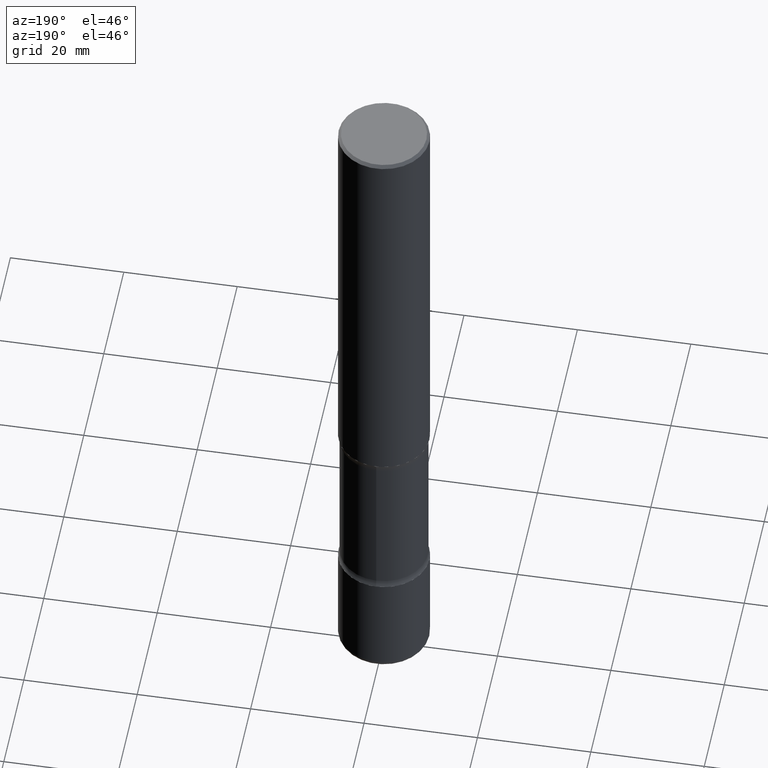
[diagram: clean part render]
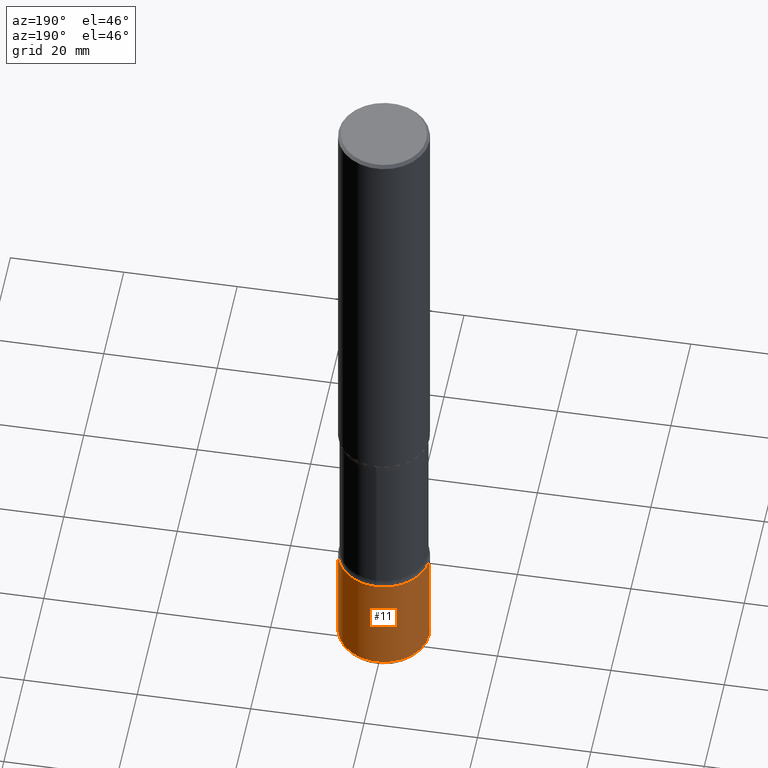
[diagram: same view with one face highlighted and labeled with its STEP entity id]
A machine part, auxiliary view. The second image highlights one B-rep face of the part: STEP entity #11.
In plain terms, the highlighted cylindrical surface (partial cylindrical patch) has radius 7.9997 mm, axis along (-0, 0, 1).
Its self-contained STEP definition (entity closure, byte-faithful):
#11 = ADVANCED_FACE ( 'NONE', ( #135 ), #42, .T. ) ;
#14 = DIRECTION ( 'NONE',  ( -2.445468806185136597E-29, 3.491481338843145583E-15, 1.000000000000000000 ) ) ;
#42 = CYLINDRICAL_SURFACE ( 'NONE', #159, 0.3149500000000002298 ) ;
#51 = EDGE_CURVE ( 'NONE', #383, #387, #357, .T. ) ;
#110 = VECTOR ( 'NONE', #354, 39.37007874015748143 ) ;
#115 = LINE ( 'NONE', #287, #210 ) ;
#135 = FACE_OUTER_BOUND ( 'NONE', #374, .T. ) ;
#138 = DIRECTION ( 'NONE',  ( 1.000000000000000000, -6.982962677686267499E-15, 4.876176775795935232E-29 ) ) ;
#142 = CARTESIAN_POINT ( 'NONE',  ( 0.000000000000000000, 0.000000000000000000, 0.000000000000000000 ) ) ;
#149 = DIRECTION ( 'NONE',  ( 1.000000000000000000, -6.982962677686269866E-15, 0.000000000000000000 ) ) ;
#158 = AXIS2_PLACEMENT_3D ( 'NONE', #320, #496, #149 ) ;
#159 = AXIS2_PLACEMENT_3D ( 'NONE', #142, #478, #138 ) ;
#165 = VERTEX_POINT ( 'NONE', #539 ) ;
#196 = CARTESIAN_POINT ( 'NONE',  ( -0.3149500000000002853, -1.477997484737894116E-14, -4.874100000000001209 ) ) ;
#210 = VECTOR ( 'NONE', #461, 39.37007874015748143 ) ;
#243 = CARTESIAN_POINT ( 'NONE',  ( 0.3149500000000002853, -1.921711328899267175E-14, -4.874100000000001209 ) ) ;
#257 = CARTESIAN_POINT ( 'NONE',  ( 0.3149500000000001743, -1.663271880198097216E-14, -4.133899999999999686 ) ) ;
#266 = DIRECTION ( 'NONE',  ( 1.000000000000000000, -6.982962677686265922E-15, 0.000000000000000000 ) ) ;
#283 = ORIENTED_EDGE ( 'NONE', *, *, #537, .T. ) ;
#287 = CARTESIAN_POINT ( 'NONE',  ( -0.3149500000000002298, 2.237854346276437168E-15, -1.549218606675783517E-29 ) ) ;
#312 = EDGE_CURVE ( 'NONE', #387, #165, #339, .T. ) ;
#320 = CARTESIAN_POINT ( 'NONE',  ( 1.191945950822697745E-28, -1.701782919365538030E-14, -4.874100000000001209 ) ) ;
#334 = ORIENTED_EDGE ( 'NONE', *, *, #51, .F. ) ;
#339 = CIRCLE ( 'NONE', #535, 0.3149500000000001743 ) ;
#354 = DIRECTION ( 'NONE',  ( -2.445468806185136877E-29, 3.491481338843145188E-15, 1.000000000000000000 ) ) ;
#357 = LINE ( 'NONE', #481, #110 ) ;
#358 = CARTESIAN_POINT ( 'NONE',  ( 1.010932349788873450E-28, -1.443343470664368071E-14, -4.133899999999999686 ) ) ;
#370 = VERTEX_POINT ( 'NONE', #196 ) ;
#374 = EDGE_LOOP ( 'NONE', ( #552, #283, #519, #334 ) ) ;
#383 = VERTEX_POINT ( 'NONE', #243 ) ;
#387 = VERTEX_POINT ( 'NONE', #257 ) ;
#419 = CIRCLE ( 'NONE', #158, 0.3149500000000002853 ) ;
#461 = DIRECTION ( 'NONE',  ( -2.445468806185136877E-29, 3.491481338843145188E-15, 1.000000000000000000 ) ) ;
#478 = DIRECTION ( 'NONE',  ( -2.445468806185136597E-29, 3.491481338843145583E-15, 1.000000000000000000 ) ) ;
#481 = CARTESIAN_POINT ( 'NONE',  ( 0.3149500000000002298, -2.199284095337291449E-15, 1.535751875536930971E-29 ) ) ;
#488 = EDGE_CURVE ( 'NONE', #383, #370, #419, .T. ) ;
#496 = DIRECTION ( 'NONE',  ( -2.445468806185136597E-29, 3.491481338843145583E-15, 1.000000000000000000 ) ) ;
#519 = ORIENTED_EDGE ( 'NONE', *, *, #312, .F. ) ;
#535 = AXIS2_PLACEMENT_3D ( 'NONE', #358, #14, #266 ) ;
#537 = EDGE_CURVE ( 'NONE', #370, #165, #115, .T. ) ;
#539 = CARTESIAN_POINT ( 'NONE',  ( -0.3149500000000001743, -1.348777760387309294E-14, -4.133899999999999686 ) ) ;
#552 = ORIENTED_EDGE ( 'NONE', *, *, #488, .T. ) ;